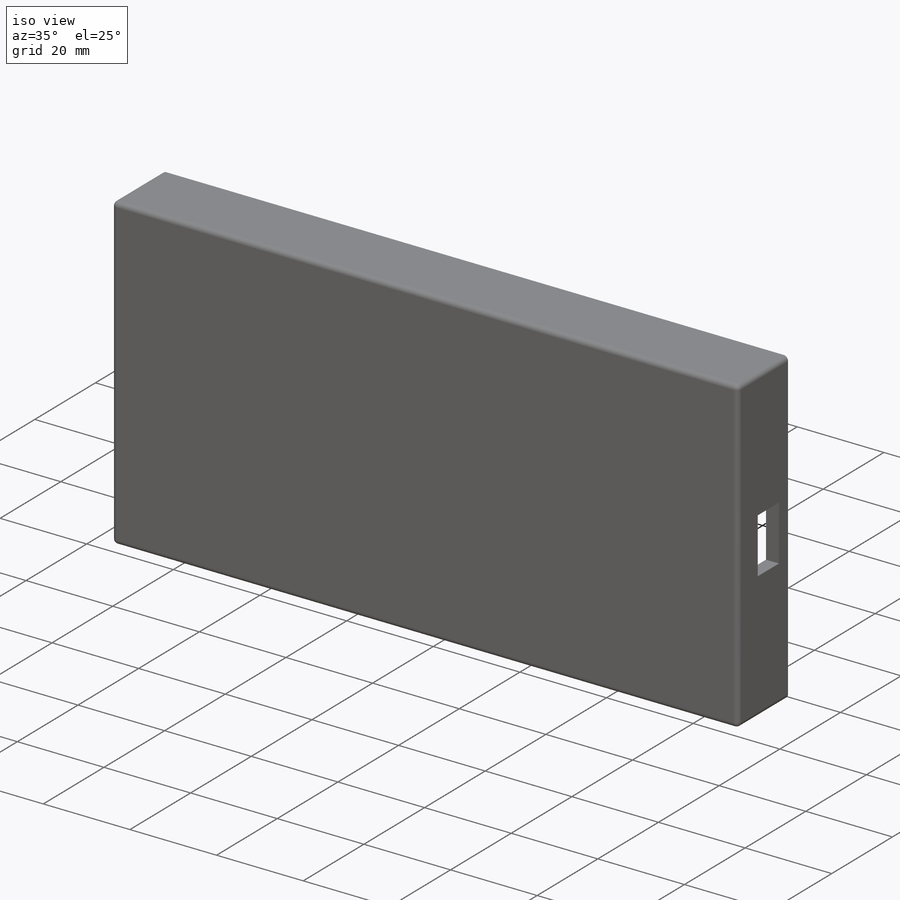
[diagram: iso view]
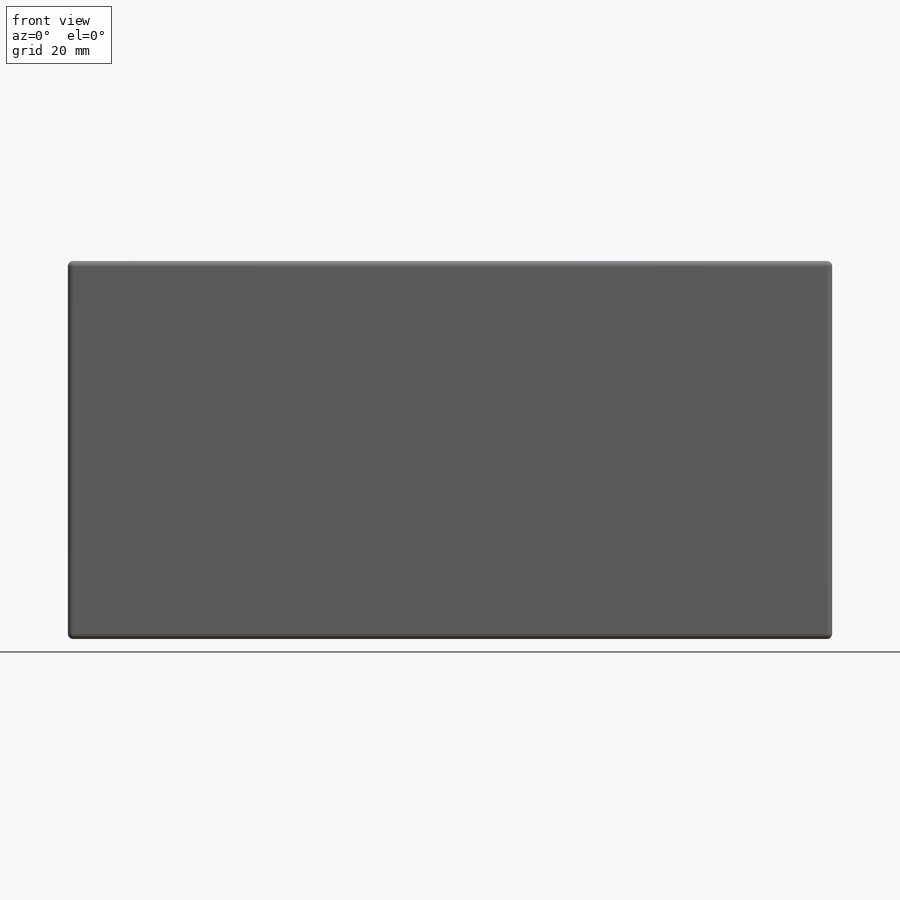
[diagram: front view]
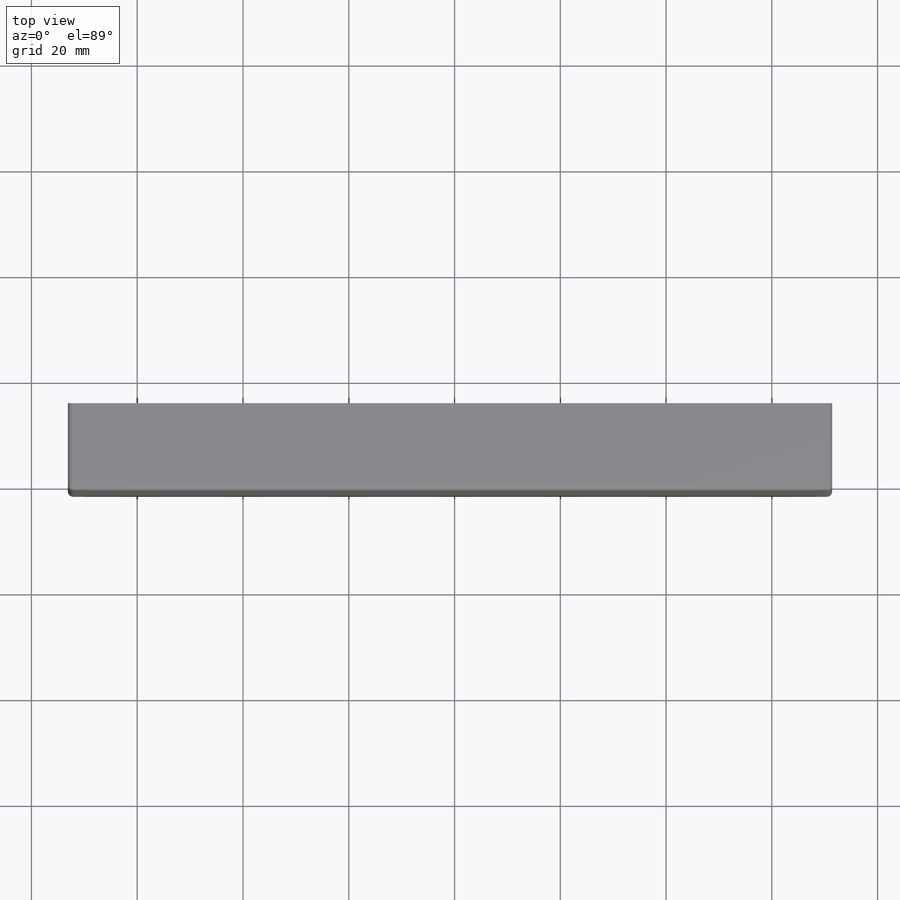
[diagram: top view]
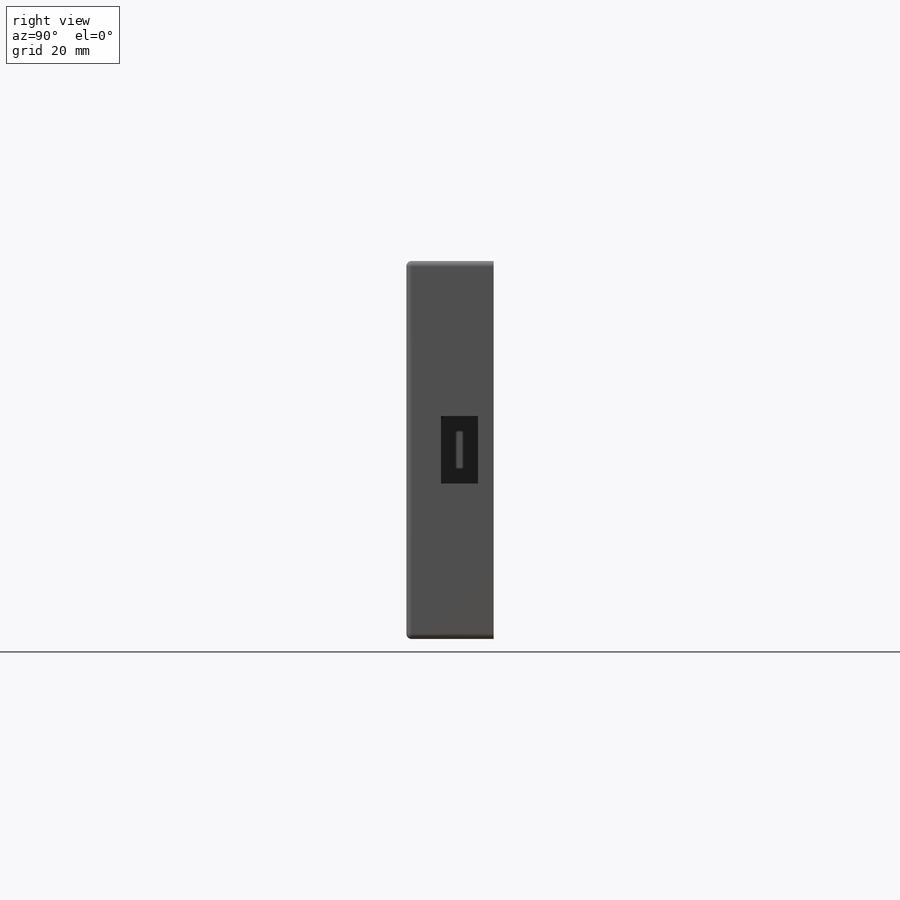
[diagram: right view]
SOLIDWORKS PART (.sldprt)
format: sldprt  version: not decoded by parser v0  size: 443,392 bytes
history: native  units: mm
features: sketch x11, extrude x6, fillet x4, plane x3, cut_extrude x2, material x1 (+9 scaffold rows collapsed)
feature tree (36):
  scaffold x9  (default folders/planes/origin — collapsed)
  material  "Material <não especificado>"
  plane  "Plano frontal"
  plane  "Plano superior"
  plane  "Plano direito"
  sketch  "Esboço2"
  extrude  "Ressalto-extrusão1"  Depth=1.5mm
  sketch  "Arquivos locais1"  dims[D5=3.0mm D1=23.5mm D2=4.5mm D3=10.5mm D4=9.0mm]
  sketch  "Arquivos locais2"  dims[D1=12.0mm D2=12.0mm]
  sketch  "Arquivos locais3"  dims[D1=6.0mm D2=~12.59367mm]
  extrude  "Ressalto-extrusão4"  Depth=5.5mm
  sketch  "Arquivos locais4"  dims[D1=2.7mm]
  extrude  "Ressalto-extrusão5"  Depth=1.5mm
  sketch  "Arquivos locais5"
  extrude  "Ressalto-extrusão6"  [1 undecoded]
  sketch  "Arquivos locais6"  dims[D1=1.0mm]
  extrude  "Ressalto-extrusão7"  [1 undecoded]
  sketch  "Arquivos locais7"  dims[D1=3.0mm]
  extrude  "Ressalto-extrusão8"  Depth=16.5mm
  sketch  "Arquivos locais8"
  cut_extrude  "Corte-extrusão1"  Depth=7mm
  sketch  "Arquivos locais9"
  sketch  "Arquivos locais10"
  cut_extrude  "Corte-extrusão2"  Depth=5mm
  fillet  "Filete1"  Radius=1mm
  fillet  "Filete2"  Radius=1mm
  fillet  "Filete3"  Radius=2mm
  fillet  "Filete4"  Radius=1mm
decode coverage: 16 of 23 modeling features carry decoded parameters
note: ~ marks probable driven/reference dimensions
note: 2 parameter values undecoded
note: suppression state not decoded; provenance and decode notes live in map.json
